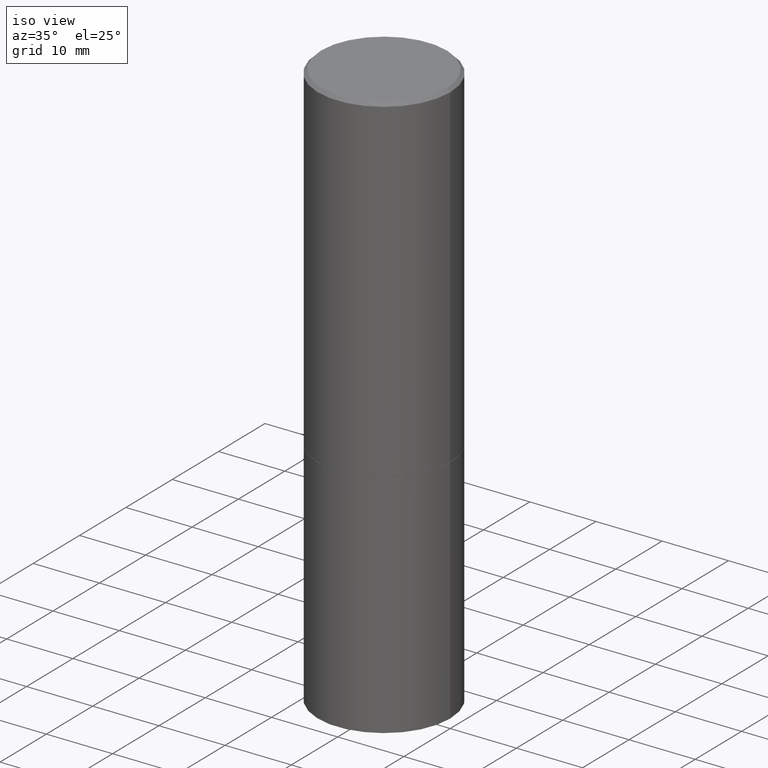
[diagram: clean part render]
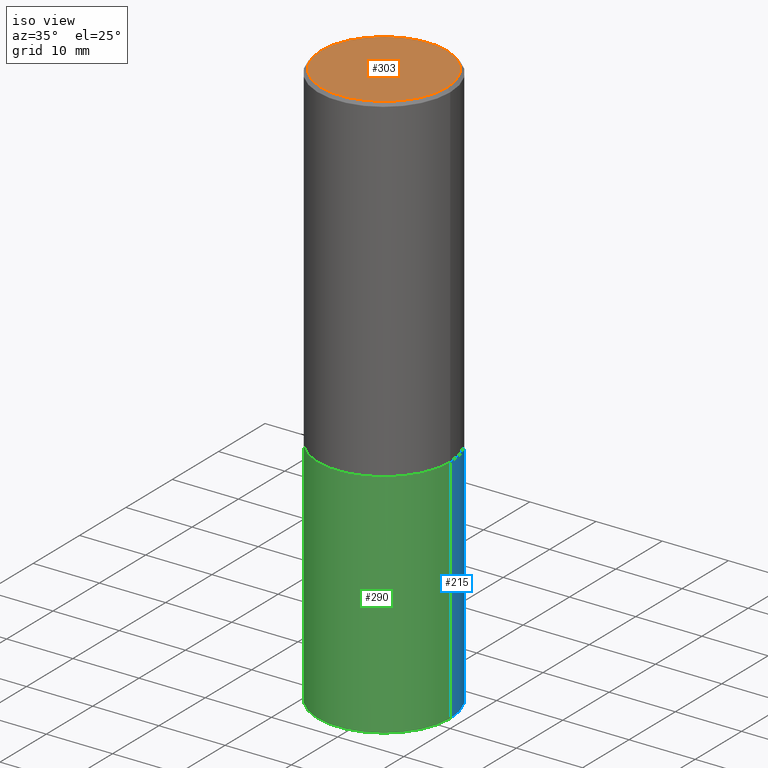
[diagram: same view with three faces highlighted in distinct colors, each labeled with its STEP entity id]
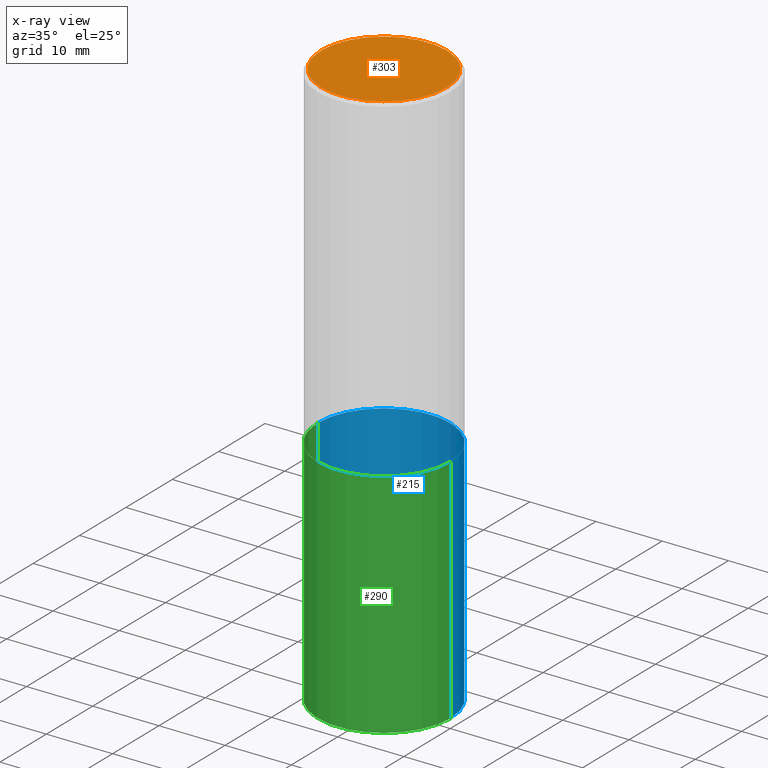
[diagram: x-ray of the same camera — body ghosted, the three highlighted faces saturated]
A machine part, iso view with three faces highlighted in distinct colors.
The next image is the same camera in x-ray (body ghosted, the three faces saturated) — at least one of them is partly hidden behind the body in this view.
Their STEP definitions:

[orange] entity #303 — the highlighted planar face has unit normal (0, -0, -1).
#14 = AXIS2_PLACEMENT_3D ( 'NONE', #142, #330, #135 ) ;
#40 = CIRCLE ( 'NONE', #360, 0.3736999999999998101 ) ;
#44 = PLANE ( 'NONE',  #14 ) ;
#72 = CARTESIAN_POINT ( 'NONE',  ( 0.3736999999999998101, -2.667287895133366781E-15, 8.537024980219274507E-18 ) ) ;
#79 = ORIENTED_EDGE ( 'NONE', *, *, #136, .T. ) ;
#87 = ORIENTED_EDGE ( 'NONE', *, *, #346, .T. ) ;
#93 = CIRCLE ( 'NONE', #124, 0.3736999999999998101 ) ;
#124 = AXIS2_PLACEMENT_3D ( 'NONE', #220, #273, #221 ) ;
#135 = DIRECTION ( 'NONE',  ( -1.000000000000000000, 6.982962677686265922E-15, -4.876176775795935793E-29 ) ) ;
#136 = EDGE_CURVE ( 'NONE', #270, #170, #40, .T. ) ;
#142 = CARTESIAN_POINT ( 'NONE',  ( 2.609533152651356226E-15, 0.3736999999999998101, -1.300498063835582617E-15 ) ) ;
#170 = VERTEX_POINT ( 'NONE', #325 ) ;
#185 = CARTESIAN_POINT ( 'NONE',  ( -2.087702828670439639E-46, 2.980686340760894400E-32, 8.537024980200822558E-18 ) ) ;
#216 = DIRECTION ( 'NONE',  ( 1.000000000000000000, -6.982962677686266711E-15, 4.876212485538977921E-29 ) ) ;
#220 = CARTESIAN_POINT ( 'NONE',  ( -2.087702828670439639E-46, 2.980686340760894400E-32, 8.537024980200822558E-18 ) ) ;
#221 = DIRECTION ( 'NONE',  ( 1.000000000000000000, -6.982962677686266711E-15, 4.876212485538977921E-29 ) ) ;
#238 = DIRECTION ( 'NONE',  ( -2.445468806185136597E-29, 3.491481338843145583E-15, 1.000000000000000000 ) ) ;
#258 = EDGE_LOOP ( 'NONE', ( #87, #79 ) ) ;
#270 = VERTEX_POINT ( 'NONE', #72 ) ;
#273 = DIRECTION ( 'NONE',  ( -2.445468806185136597E-29, 3.491481338843145583E-15, 1.000000000000000000 ) ) ;
#303 = ADVANCED_FACE ( 'NONE', ( #331 ), #44, .F. ) ;
#325 = CARTESIAN_POINT ( 'NONE',  ( -0.3736999999999998101, 2.644447966039787875E-15, 8.537024980182450727E-18 ) ) ;
#330 = DIRECTION ( 'NONE',  ( 2.438088387897960049E-29, -3.491481338843145188E-15, -1.000000000000000000 ) ) ;
#331 = FACE_OUTER_BOUND ( 'NONE', #258, .T. ) ;
#346 = EDGE_CURVE ( 'NONE', #170, #270, #93, .T. ) ;
#360 = AXIS2_PLACEMENT_3D ( 'NONE', #185, #238, #216 ) ;

[blue] entity #215 — the highlighted cylindrical surface (partial cylindrical patch) has radius 10 mm, axis along (-0, 0, 1).
#6 = ORIENTED_EDGE ( 'NONE', *, *, #332, .F. ) ;
#22 = CIRCLE ( 'NONE', #41, 0.3937000000000000499 ) ;
#38 = EDGE_CURVE ( 'NONE', #113, #274, #147, .T. ) ;
#41 = AXIS2_PLACEMENT_3D ( 'NONE', #364, #82, #105 ) ;
#51 = DIRECTION ( 'NONE',  ( 1.000000000000000000, -6.982962677686267499E-15, 0.000000000000000000 ) ) ;
#78 = VECTOR ( 'NONE', #297, 39.37007874015748143 ) ;
#82 = DIRECTION ( 'NONE',  ( -2.445468806185136597E-29, 3.491481338843145583E-15, 1.000000000000000000 ) ) ;
#96 = DIRECTION ( 'NONE',  ( 1.000000000000000000, -6.982962677686265922E-15, 4.876176775795935793E-29 ) ) ;
#104 = CARTESIAN_POINT ( 'NONE',  ( -0.3937000000000000499, 2.797406750687514786E-15, -1.936584745033356735E-29 ) ) ;
#105 = DIRECTION ( 'NONE',  ( 1.000000000000000000, -6.982962677686265133E-15, 0.000000000000000000 ) ) ;
#106 = ORIENTED_EDGE ( 'NONE', *, *, #356, .T. ) ;
#113 = VERTEX_POINT ( 'NONE', #355 ) ;
#116 = EDGE_LOOP ( 'NONE', ( #197, #106, #6, #125 ) ) ;
#121 = VERTEX_POINT ( 'NONE', #354 ) ;
#123 = CARTESIAN_POINT ( 'NONE',  ( 0.3937000000000000499, -2.749192406205083217E-15, 1.919750796630860172E-29 ) ) ;
#125 = ORIENTED_EDGE ( 'NONE', *, *, #38, .F. ) ;
#132 = CYLINDRICAL_SURFACE ( 'NONE', #353, 0.3937000000000000499 ) ;
#147 = LINE ( 'NONE', #123, #235 ) ;
#162 = CARTESIAN_POINT ( 'NONE',  ( 0.3937000000000000499, -9.759388638334352204E-15, -2.007800000000000473 ) ) ;
#168 = LINE ( 'NONE', #104, #78 ) ;
#197 = ORIENTED_EDGE ( 'NONE', *, *, #289, .T. ) ;
#198 = AXIS2_PLACEMENT_3D ( 'NONE', #338, #248, #51 ) ;
#211 = FACE_OUTER_BOUND ( 'NONE', #116, .T. ) ;
#215 = ADVANCED_FACE ( 'NONE', ( #211 ), #132, .T. ) ;
#235 = VECTOR ( 'NONE', #256, 39.37007874015748143 ) ;
#240 = DIRECTION ( 'NONE',  ( -2.445468806185136597E-29, 3.491481338843145583E-15, 1.000000000000000000 ) ) ;
#248 = DIRECTION ( 'NONE',  ( -2.445468806185136597E-29, 3.491481338843145583E-15, 1.000000000000000000 ) ) ;
#256 = DIRECTION ( 'NONE',  ( -2.445468806185136877E-29, 3.491481338843145188E-15, 1.000000000000000000 ) ) ;
#274 = VERTEX_POINT ( 'NONE', #162 ) ;
#289 = EDGE_CURVE ( 'NONE', #113, #340, #309, .T. ) ;
#293 = CARTESIAN_POINT ( 'NONE',  ( 0.000000000000000000, 0.000000000000000000, 0.000000000000000000 ) ) ;
#297 = DIRECTION ( 'NONE',  ( -2.445468806185136877E-29, 3.491481338843145188E-15, 1.000000000000000000 ) ) ;
#309 = CIRCLE ( 'NONE', #198, 0.3937000000000000499 ) ;
#332 = EDGE_CURVE ( 'NONE', #274, #121, #22, .T. ) ;
#338 = CARTESIAN_POINT ( 'NONE',  ( 8.279868283981636714E-29, -1.182145751705512373E-14, -3.385800000000000143 ) ) ;
#340 = VERTEX_POINT ( 'NONE', #359 ) ;
#353 = AXIS2_PLACEMENT_3D ( 'NONE', #293, #240, #96 ) ;
#354 = CARTESIAN_POINT ( 'NONE',  ( -0.3937000000000000499, -6.618420123904681571E-15, -2.007800000000000473 ) ) ;
#355 = CARTESIAN_POINT ( 'NONE',  ( 0.3937000000000000499, -1.457064992326020852E-14, -3.385800000000000143 ) ) ;
#356 = EDGE_CURVE ( 'NONE', #340, #121, #168, .T. ) ;
#359 = CARTESIAN_POINT ( 'NONE',  ( -0.3937000000000000499, -6.618420123904681571E-15, -3.385800000000000143 ) ) ;
#364 = CARTESIAN_POINT ( 'NONE',  ( 4.910012269058518206E-29, -7.010196232129268988E-15, -2.007800000000000473 ) ) ;

[green] entity #290 — the highlighted cylindrical surface (partial cylindrical patch) has radius 10 mm, axis along (-0, 0, 1).
#21 = CARTESIAN_POINT ( 'NONE',  ( 0.000000000000000000, 0.000000000000000000, 0.000000000000000000 ) ) ;
#38 = EDGE_CURVE ( 'NONE', #113, #274, #147, .T. ) ;
#47 = DIRECTION ( 'NONE',  ( 1.000000000000000000, -6.982962677686265922E-15, 4.876176775795935793E-29 ) ) ;
#48 = ORIENTED_EDGE ( 'NONE', *, *, #38, .T. ) ;
#57 = ORIENTED_EDGE ( 'NONE', *, *, #163, .F. ) ;
#70 = AXIS2_PLACEMENT_3D ( 'NONE', #160, #187, #158 ) ;
#75 = ORIENTED_EDGE ( 'NONE', *, *, #356, .F. ) ;
#78 = VECTOR ( 'NONE', #297, 39.37007874015748143 ) ;
#92 = CIRCLE ( 'NONE', #294, 0.3937000000000000499 ) ;
#104 = CARTESIAN_POINT ( 'NONE',  ( -0.3937000000000000499, 2.797406750687514786E-15, -1.936584745033356735E-29 ) ) ;
#108 = EDGE_CURVE ( 'NONE', #340, #113, #206, .T. ) ;
#111 = DIRECTION ( 'NONE',  ( -2.445468806185136597E-29, 3.491481338843145583E-15, 1.000000000000000000 ) ) ;
#113 = VERTEX_POINT ( 'NONE', #355 ) ;
#121 = VERTEX_POINT ( 'NONE', #354 ) ;
#123 = CARTESIAN_POINT ( 'NONE',  ( 0.3937000000000000499, -2.749192406205083217E-15, 1.919750796630860172E-29 ) ) ;
#138 = ORIENTED_EDGE ( 'NONE', *, *, #108, .T. ) ;
#147 = LINE ( 'NONE', #123, #235 ) ;
#158 = DIRECTION ( 'NONE',  ( 1.000000000000000000, -6.982962677686267499E-15, 0.000000000000000000 ) ) ;
#160 = CARTESIAN_POINT ( 'NONE',  ( 8.279868283981636714E-29, -1.182145751705512373E-14, -3.385800000000000143 ) ) ;
#162 = CARTESIAN_POINT ( 'NONE',  ( 0.3937000000000000499, -9.759388638334352204E-15, -2.007800000000000473 ) ) ;
#163 = EDGE_CURVE ( 'NONE', #121, #274, #92, .T. ) ;
#168 = LINE ( 'NONE', #104, #78 ) ;
#187 = DIRECTION ( 'NONE',  ( -2.445468806185136597E-29, 3.491481338843145583E-15, 1.000000000000000000 ) ) ;
#189 = AXIS2_PLACEMENT_3D ( 'NONE', #21, #111, #47 ) ;
#206 = CIRCLE ( 'NONE', #70, 0.3937000000000000499 ) ;
#229 = EDGE_LOOP ( 'NONE', ( #75, #138, #48, #57 ) ) ;
#235 = VECTOR ( 'NONE', #256, 39.37007874015748143 ) ;
#237 = CARTESIAN_POINT ( 'NONE',  ( 4.910012269058518206E-29, -7.010196232129268988E-15, -2.007800000000000473 ) ) ;
#256 = DIRECTION ( 'NONE',  ( -2.445468806185136877E-29, 3.491481338843145188E-15, 1.000000000000000000 ) ) ;
#274 = VERTEX_POINT ( 'NONE', #162 ) ;
#290 = ADVANCED_FACE ( 'NONE', ( #361 ), #306, .T. ) ;
#294 = AXIS2_PLACEMENT_3D ( 'NONE', #237, #295, #351 ) ;
#295 = DIRECTION ( 'NONE',  ( -2.445468806185136597E-29, 3.491481338843145583E-15, 1.000000000000000000 ) ) ;
#297 = DIRECTION ( 'NONE',  ( -2.445468806185136877E-29, 3.491481338843145188E-15, 1.000000000000000000 ) ) ;
#306 = CYLINDRICAL_SURFACE ( 'NONE', #189, 0.3937000000000000499 ) ;
#340 = VERTEX_POINT ( 'NONE', #359 ) ;
#351 = DIRECTION ( 'NONE',  ( 1.000000000000000000, -6.982962677686265133E-15, 0.000000000000000000 ) ) ;
#354 = CARTESIAN_POINT ( 'NONE',  ( -0.3937000000000000499, -6.618420123904681571E-15, -2.007800000000000473 ) ) ;
#355 = CARTESIAN_POINT ( 'NONE',  ( 0.3937000000000000499, -1.457064992326020852E-14, -3.385800000000000143 ) ) ;
#356 = EDGE_CURVE ( 'NONE', #340, #121, #168, .T. ) ;
#359 = CARTESIAN_POINT ( 'NONE',  ( -0.3937000000000000499, -6.618420123904681571E-15, -3.385800000000000143 ) ) ;
#361 = FACE_OUTER_BOUND ( 'NONE', #229, .T. ) ;